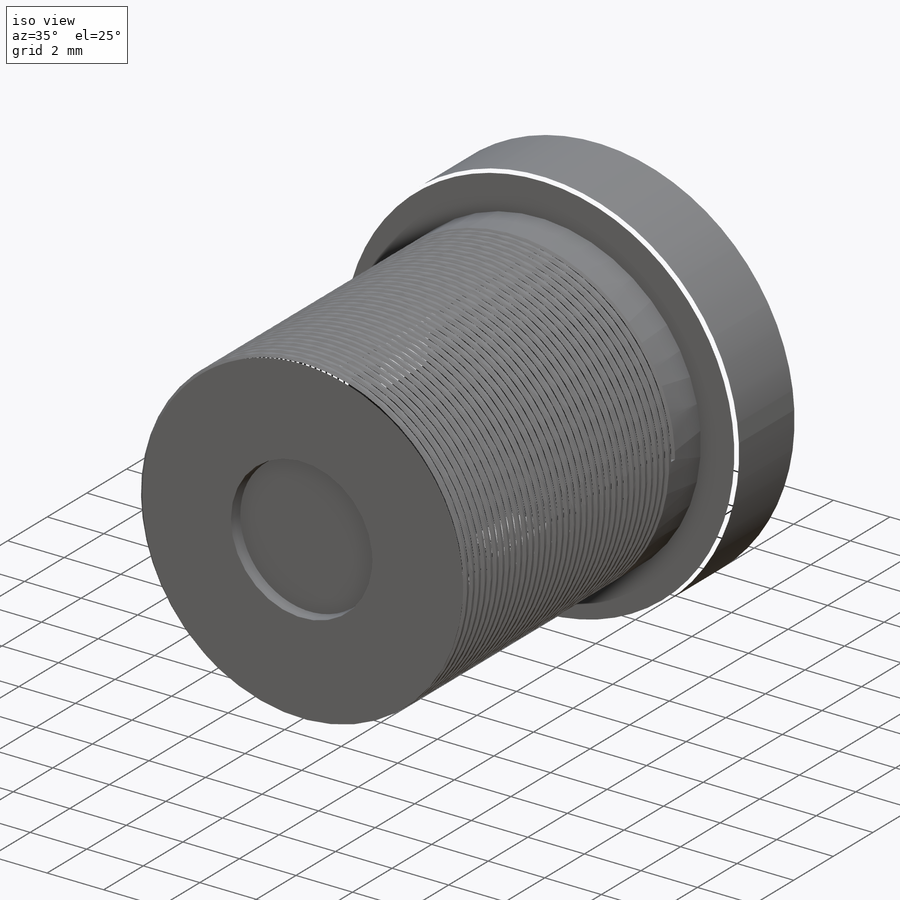
[diagram: iso view]
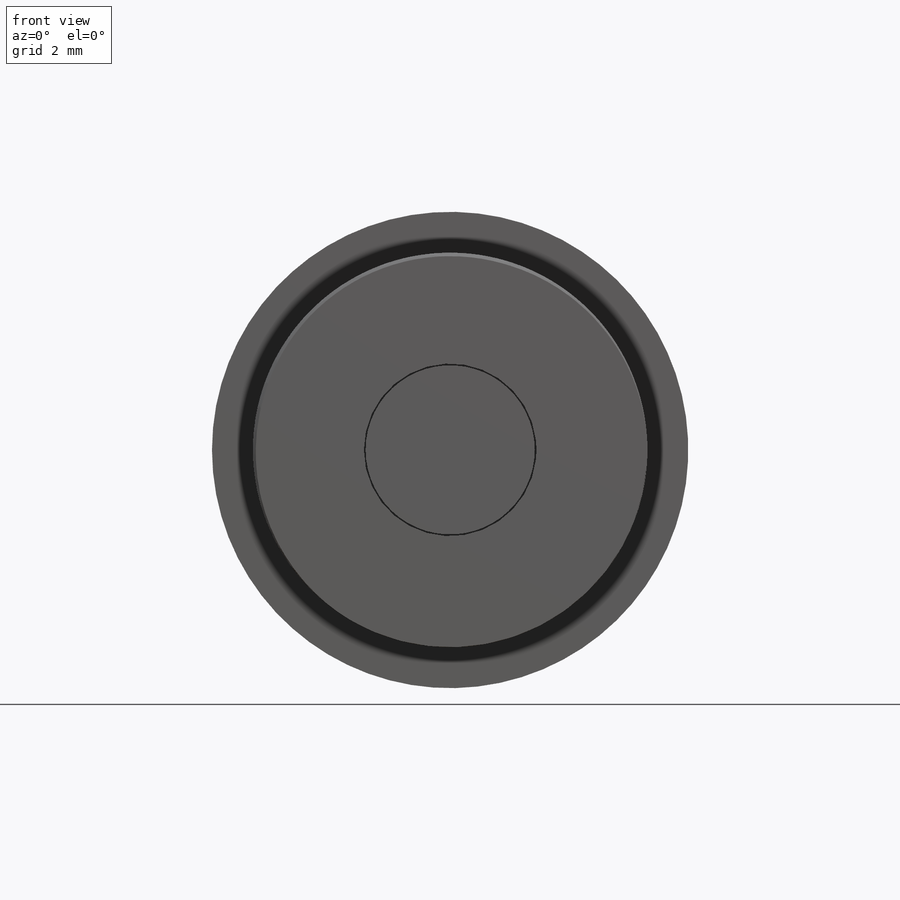
[diagram: front view]
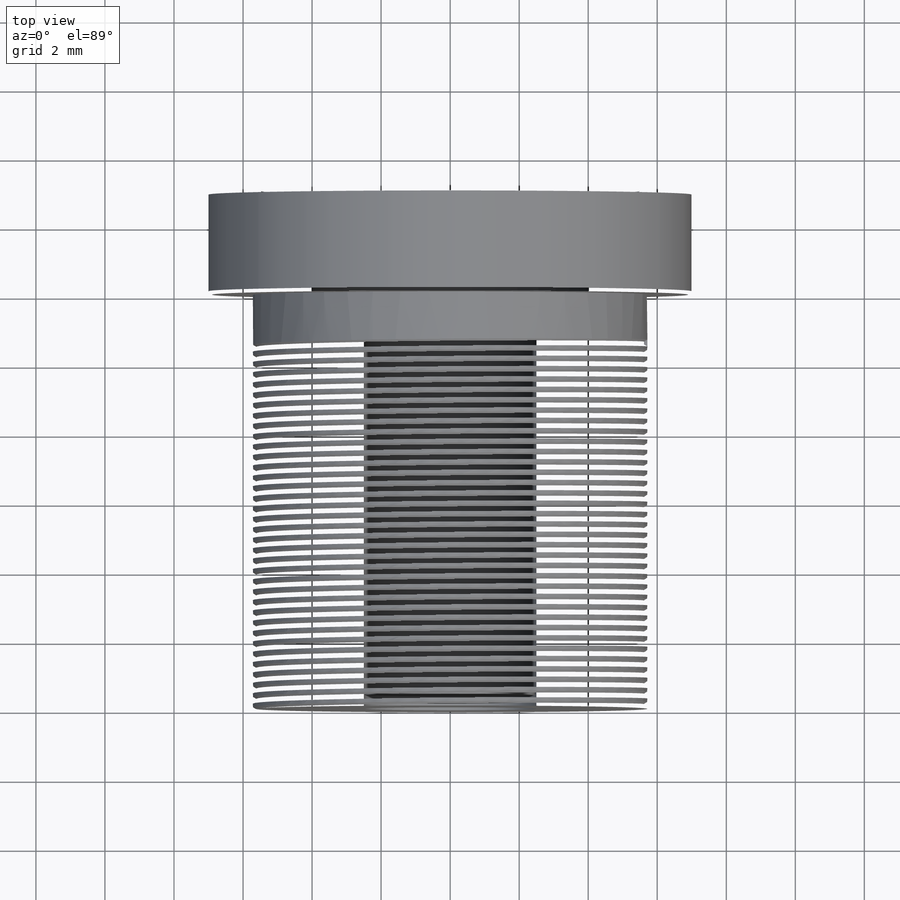
[diagram: top view]
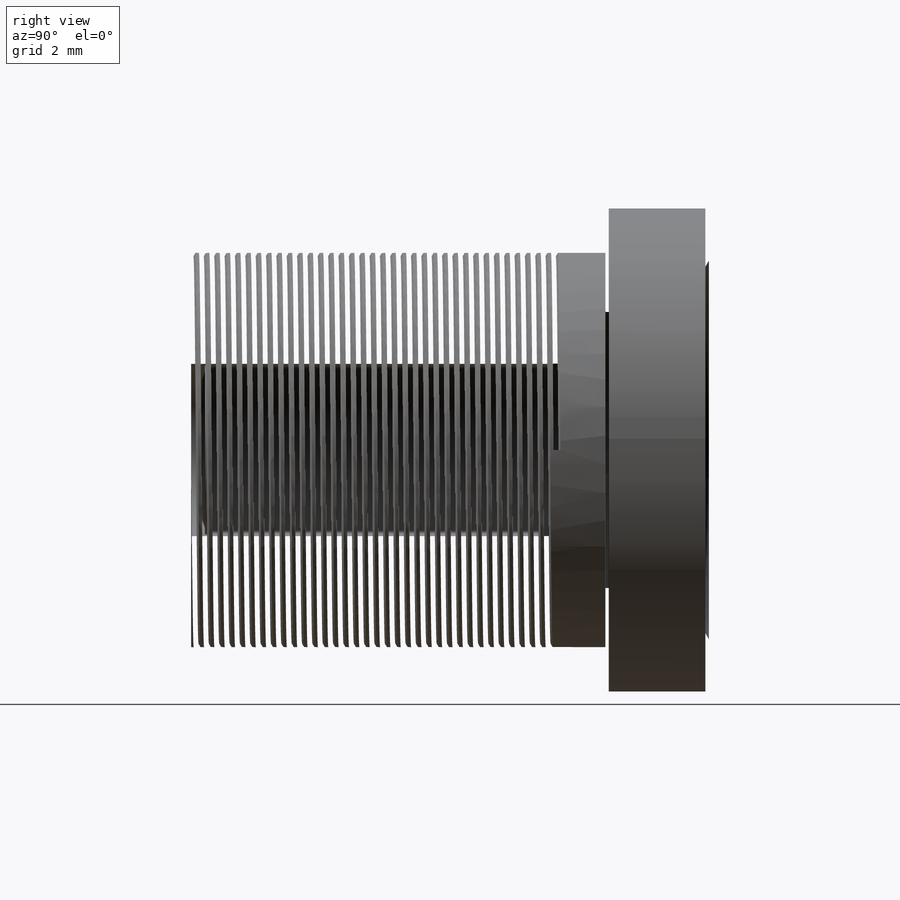
[diagram: right view]
SOLIDWORKS PART (.sldprt)
format: sldprt  version: not decoded by parser v0  size: 1,639,424 bytes
history: native  units: mm
features: sketch x6, plane x5, extrude x4, material x1, chamfer x1, helix x1, sweep x1, fillet x1 (+10 scaffold rows collapsed)
feature tree (30):
  scaffold x10  (default folders/planes/origin — collapsed)
  material  "材质 <未指定>"
  plane  "前视基准面"
  plane  "上视基准面"
  plane  "右视基准面"
  sketch  "草图1"  dims[D1=11.43mm D2=5.0mm]
  extrude  "凸台-拉伸1"  Depth=12mm
  plane  "基准面1"  Offset=0.5mm
  sketch  "草图2"  dims[D1=4.9mm]
  extrude  "凸台-拉伸2"  Depth=0.1mm
  sketch  "草图3"  dims[D1=14.0mm D2=8.0mm]
  extrude  "凸台-拉伸3"  Depth=3mm
  plane  "基准面2"  Offset=1.5mm
  chamfer  "倒角1"  Distance=1.5mm Angle=30deg
  sketch  "草图4"  dims[D1=7.9mm]
  extrude  "凸台-拉伸4"  Depth=0.1mm
  sketch  "草图5"
  helix  "螺旋线/涡状线1"  Pitch=10.5mm
  sketch  "草图6"  dims[c1.D1=0.2mm c1.D2=~0.110299mm c2.D1=0.25mm c2.D2=0.1mm c2.D3=0.15mm c3.D1=0.2mm c3.D3=0.08mm]
  sweep  "切除-扫描1"
  fillet  "圆角1"  Radius=0.1mm
decode coverage: 12 of 14 modeling features carry decoded parameters
note: ~ marks probable driven/reference dimensions
note: suppression state not decoded; provenance and decode notes live in map.json
